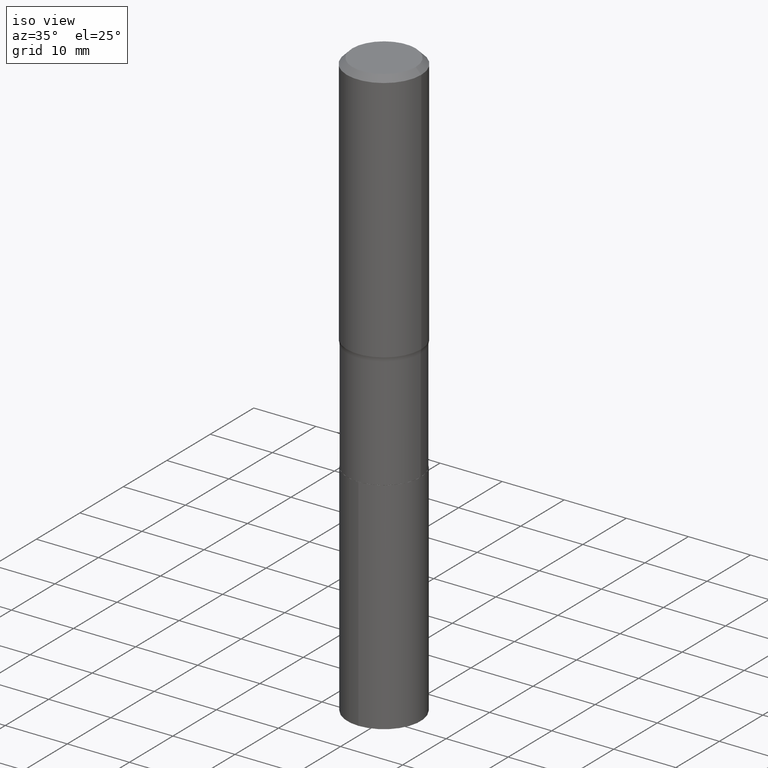
[diagram: clean part render]
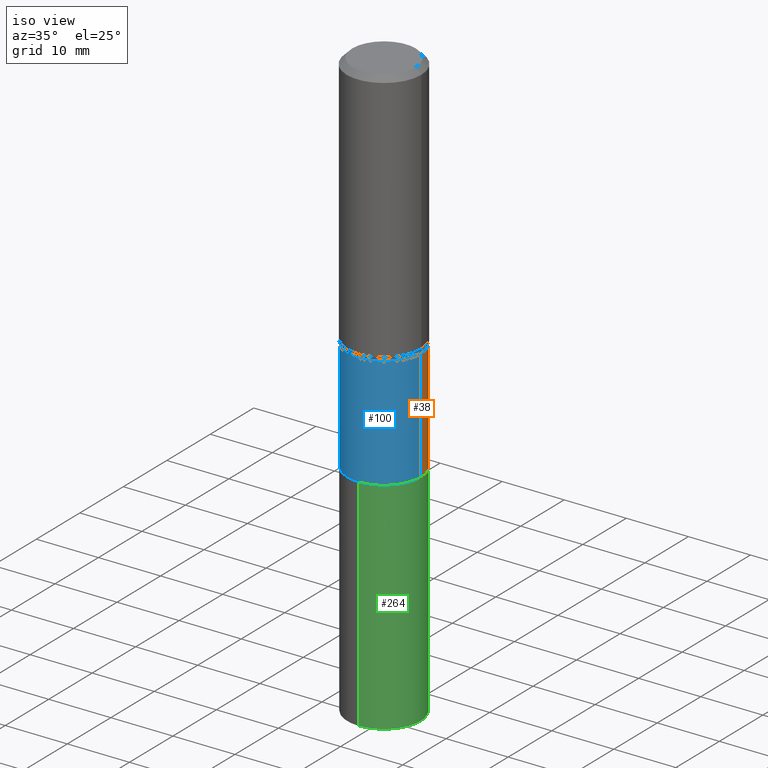
[diagram: same view with three faces highlighted in distinct colors, each labeled with its STEP entity id]
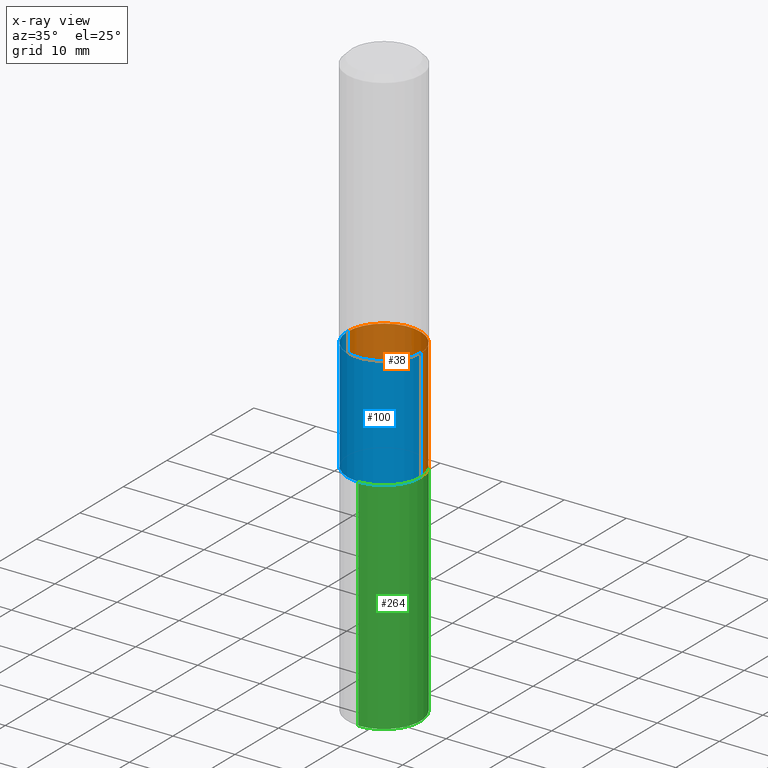
[diagram: x-ray of the same camera — body ghosted, the three highlighted faces saturated]
A machine part, iso view with three faces highlighted in distinct colors.
The next image is the same camera in x-ray (body ghosted, the three faces saturated) — at least one of them is partly hidden behind the body in this view.
Their STEP definitions:

[orange] entity #38 — the highlighted cylindrical surface (partial cylindrical patch) has radius 5.9004 mm, axis along (-0, 0, 1).
#5 = FACE_OUTER_BOUND ( 'NONE', #64, .T. ) ;
#12 = AXIS2_PLACEMENT_3D ( 'NONE', #29, #294, #181 ) ;
#18 = CARTESIAN_POINT ( 'NONE',  ( 0.2322999999999998955, -7.321985515687955047E-15, -1.632500000000000062 ) ) ;
#29 = CARTESIAN_POINT ( 'NONE',  ( 0.000000000000000000, 0.000000000000000000, 0.000000000000000000 ) ) ;
#38 = ADVANCED_FACE ( 'NONE', ( #5 ), #358, .T. ) ;
#47 = AXIS2_PLACEMENT_3D ( 'NONE', #85, #151, #115 ) ;
#49 = EDGE_CURVE ( 'NONE', #384, #308, #435, .T. ) ;
#58 = CARTESIAN_POINT ( 'NONE',  ( 0.2323000000000000065, -9.798144081195515105E-15, -2.341700000000000337 ) ) ;
#63 = EDGE_CURVE ( 'NONE', #168, #126, #276, .T. ) ;
#64 = EDGE_LOOP ( 'NONE', ( #412, #421, #258, #336 ) ) ;
#66 = DIRECTION ( 'NONE',  ( -2.445468806185136877E-29, 3.491481338843145188E-15, 1.000000000000000000 ) ) ;
#85 = CARTESIAN_POINT ( 'NONE',  ( 3.992227826097236189E-29, -5.699843285661435555E-15, -1.632500000000000062 ) ) ;
#115 = DIRECTION ( 'NONE',  ( 1.000000000000000000, -6.982962677686265133E-15, 0.000000000000000000 ) ) ;
#126 = VERTEX_POINT ( 'NONE', #18 ) ;
#151 = DIRECTION ( 'NONE',  ( -2.445468806185136597E-29, 3.491481338843145583E-15, 1.000000000000000000 ) ) ;
#168 = VERTEX_POINT ( 'NONE', #58 ) ;
#177 = CARTESIAN_POINT ( 'NONE',  ( 0.2322999999999999510, -1.622142230026519492E-15, 1.132735865017395539E-29 ) ) ;
#181 = DIRECTION ( 'NONE',  ( 1.000000000000000000, -6.982962677686266711E-15, 4.876176775795935232E-29 ) ) ;
#224 = EDGE_CURVE ( 'NONE', #168, #384, #366, .T. ) ;
#258 = ORIENTED_EDGE ( 'NONE', *, *, #367, .F. ) ;
#262 = AXIS2_PLACEMENT_3D ( 'NONE', #309, #273, #341 ) ;
#273 = DIRECTION ( 'NONE',  ( -2.445468806185136597E-29, 3.491481338843145583E-15, 1.000000000000000000 ) ) ;
#276 = LINE ( 'NONE', #177, #300 ) ;
#294 = DIRECTION ( 'NONE',  ( -2.445468806185136597E-29, 3.491481338843145583E-15, 1.000000000000000000 ) ) ;
#295 = VECTOR ( 'NONE', #432, 39.37007874015748143 ) ;
#300 = VECTOR ( 'NONE', #66, 39.37007874015748143 ) ;
#308 = VERTEX_POINT ( 'NONE', #461 ) ;
#309 = CARTESIAN_POINT ( 'NONE',  ( 5.726554303443734982E-29, -8.176001851168995614E-15, -2.341700000000000337 ) ) ;
#319 = CARTESIAN_POINT ( 'NONE',  ( -0.2322999999999999510, 1.650590775170712383E-15, -1.142668621466214426E-29 ) ) ;
#335 = CARTESIAN_POINT ( 'NONE',  ( -0.2323000000000000065, -5.287331793244503201E-15, -2.341700000000000337 ) ) ;
#336 = ORIENTED_EDGE ( 'NONE', *, *, #63, .F. ) ;
#341 = DIRECTION ( 'NONE',  ( 1.000000000000000000, -6.982962677686265922E-15, 0.000000000000000000 ) ) ;
#358 = CYLINDRICAL_SURFACE ( 'NONE', #12, 0.2322999999999999510 ) ;
#366 = CIRCLE ( 'NONE', #262, 0.2323000000000000065 ) ;
#367 = EDGE_CURVE ( 'NONE', #126, #308, #389, .T. ) ;
#384 = VERTEX_POINT ( 'NONE', #335 ) ;
#389 = CIRCLE ( 'NONE', #47, 0.2322999999999998955 ) ;
#412 = ORIENTED_EDGE ( 'NONE', *, *, #224, .T. ) ;
#421 = ORIENTED_EDGE ( 'NONE', *, *, #49, .T. ) ;
#432 = DIRECTION ( 'NONE',  ( -2.445468806185136877E-29, 3.491481338843145188E-15, 1.000000000000000000 ) ) ;
#435 = LINE ( 'NONE', #319, #295 ) ;
#461 = CARTESIAN_POINT ( 'NONE',  ( -0.2322999999999998955, -5.287331793244503201E-15, -1.632500000000000062 ) ) ;

[blue] entity #100 — the highlighted cylindrical surface (partial cylindrical patch) has radius 5.9004 mm, axis along (-0, 0, 1).
#18 = CARTESIAN_POINT ( 'NONE',  ( 0.2322999999999998955, -7.321985515687955047E-15, -1.632500000000000062 ) ) ;
#41 = AXIS2_PLACEMENT_3D ( 'NONE', #407, #350, #199 ) ;
#49 = EDGE_CURVE ( 'NONE', #384, #308, #435, .T. ) ;
#58 = CARTESIAN_POINT ( 'NONE',  ( 0.2323000000000000065, -9.798144081195515105E-15, -2.341700000000000337 ) ) ;
#63 = EDGE_CURVE ( 'NONE', #168, #126, #276, .T. ) ;
#66 = DIRECTION ( 'NONE',  ( -2.445468806185136877E-29, 3.491481338843145188E-15, 1.000000000000000000 ) ) ;
#68 = CIRCLE ( 'NONE', #161, 0.2322999999999998955 ) ;
#100 = ADVANCED_FACE ( 'NONE', ( #165 ), #129, .T. ) ;
#126 = VERTEX_POINT ( 'NONE', #18 ) ;
#129 = CYLINDRICAL_SURFACE ( 'NONE', #379, 0.2322999999999999510 ) ;
#135 = DIRECTION ( 'NONE',  ( 1.000000000000000000, -6.982962677686266711E-15, 4.876176775795935232E-29 ) ) ;
#144 = EDGE_LOOP ( 'NONE', ( #249, #394, #178, #283 ) ) ;
#161 = AXIS2_PLACEMENT_3D ( 'NONE', #170, #310, #247 ) ;
#165 = FACE_OUTER_BOUND ( 'NONE', #144, .T. ) ;
#168 = VERTEX_POINT ( 'NONE', #58 ) ;
#170 = CARTESIAN_POINT ( 'NONE',  ( 3.992227826097236189E-29, -5.699843285661435555E-15, -1.632500000000000062 ) ) ;
#177 = CARTESIAN_POINT ( 'NONE',  ( 0.2322999999999999510, -1.622142230026519492E-15, 1.132735865017395539E-29 ) ) ;
#178 = ORIENTED_EDGE ( 'NONE', *, *, #63, .T. ) ;
#196 = EDGE_CURVE ( 'NONE', #308, #126, #68, .T. ) ;
#199 = DIRECTION ( 'NONE',  ( 1.000000000000000000, -6.982962677686265922E-15, 0.000000000000000000 ) ) ;
#216 = CIRCLE ( 'NONE', #41, 0.2323000000000000065 ) ;
#247 = DIRECTION ( 'NONE',  ( 1.000000000000000000, -6.982962677686265133E-15, 0.000000000000000000 ) ) ;
#249 = ORIENTED_EDGE ( 'NONE', *, *, #49, .F. ) ;
#276 = LINE ( 'NONE', #177, #300 ) ;
#283 = ORIENTED_EDGE ( 'NONE', *, *, #196, .F. ) ;
#295 = VECTOR ( 'NONE', #432, 39.37007874015748143 ) ;
#300 = VECTOR ( 'NONE', #66, 39.37007874015748143 ) ;
#308 = VERTEX_POINT ( 'NONE', #461 ) ;
#310 = DIRECTION ( 'NONE',  ( -2.445468806185136597E-29, 3.491481338843145583E-15, 1.000000000000000000 ) ) ;
#319 = CARTESIAN_POINT ( 'NONE',  ( -0.2322999999999999510, 1.650590775170712383E-15, -1.142668621466214426E-29 ) ) ;
#335 = CARTESIAN_POINT ( 'NONE',  ( -0.2323000000000000065, -5.287331793244503201E-15, -2.341700000000000337 ) ) ;
#350 = DIRECTION ( 'NONE',  ( -2.445468806185136597E-29, 3.491481338843145583E-15, 1.000000000000000000 ) ) ;
#376 = CARTESIAN_POINT ( 'NONE',  ( 0.000000000000000000, 0.000000000000000000, 0.000000000000000000 ) ) ;
#379 = AXIS2_PLACEMENT_3D ( 'NONE', #376, #388, #135 ) ;
#384 = VERTEX_POINT ( 'NONE', #335 ) ;
#388 = DIRECTION ( 'NONE',  ( -2.445468806185136597E-29, 3.491481338843145583E-15, 1.000000000000000000 ) ) ;
#394 = ORIENTED_EDGE ( 'NONE', *, *, #446, .T. ) ;
#407 = CARTESIAN_POINT ( 'NONE',  ( 5.726554303443734982E-29, -8.176001851168995614E-15, -2.341700000000000337 ) ) ;
#432 = DIRECTION ( 'NONE',  ( -2.445468806185136877E-29, 3.491481338843145188E-15, 1.000000000000000000 ) ) ;
#435 = LINE ( 'NONE', #319, #295 ) ;
#446 = EDGE_CURVE ( 'NONE', #384, #168, #216, .T. ) ;
#461 = CARTESIAN_POINT ( 'NONE',  ( -0.2322999999999998955, -5.287331793244503201E-15, -1.632500000000000062 ) ) ;

[green] entity #264 — the highlighted cylindrical surface (partial cylindrical patch) has radius 5.9004 mm, axis along (-0, 0, 1).
#2 = VECTOR ( 'NONE', #244, 39.37007874015748143 ) ;
#8 = DIRECTION ( 'NONE',  ( -2.445460196475928027E-29, 3.491493668436766401E-15, 1.000000000000000000 ) ) ;
#14 = CARTESIAN_POINT ( 'NONE',  ( 5.727777037846827784E-29, -8.177747591838416328E-15, -2.342200000000000060 ) ) ;
#19 = EDGE_LOOP ( 'NONE', ( #351, #256, #451, #123 ) ) ;
#23 = VERTEX_POINT ( 'NONE', #140 ) ;
#27 = VERTEX_POINT ( 'NONE', #426 ) ;
#40 = CIRCLE ( 'NONE', #204, 0.2323000000000000065 ) ;
#62 = CARTESIAN_POINT ( 'NONE',  ( -1.622142230026462497E-15, -0.2323000000000081666, -2.342199999999999616 ) ) ;
#75 = AXIS2_PLACEMENT_3D ( 'NONE', #14, #417, #246 ) ;
#91 = LINE ( 'NONE', #225, #113 ) ;
#95 = CARTESIAN_POINT ( 'NONE',  ( 9.146530392520179106E-29, -1.305885574031301935E-14, -3.740200000000001079 ) ) ;
#106 = FACE_OUTER_BOUND ( 'NONE', #19, .T. ) ;
#113 = VECTOR ( 'NONE', #8, 39.37007874015748143 ) ;
#123 = ORIENTED_EDGE ( 'NONE', *, *, #302, .F. ) ;
#140 = CARTESIAN_POINT ( 'NONE',  ( 1.650590775170804286E-15, 0.2322999999999918463, -2.342200000000000948 ) ) ;
#145 = CARTESIAN_POINT ( 'NONE',  ( 5.727777037846827784E-29, -8.177747591838416328E-15, -2.342200000000000060 ) ) ;
#150 = EDGE_CURVE ( 'NONE', #275, #27, #232, .T. ) ;
#156 = DIRECTION ( 'NONE',  ( -2.445460196475928027E-29, 3.491493668436766401E-15, 1.000000000000000000 ) ) ;
#163 = LINE ( 'NONE', #415, #2 ) ;
#204 = AXIS2_PLACEMENT_3D ( 'NONE', #145, #156, #339 ) ;
#209 = VERTEX_POINT ( 'NONE', #62 ) ;
#221 = AXIS2_PLACEMENT_3D ( 'NONE', #95, #419, #449 ) ;
#225 = CARTESIAN_POINT ( 'NONE',  ( 1.650590775170769773E-15, 0.2322999999999918463, -2.342200000000000948 ) ) ;
#232 = CIRCLE ( 'NONE', #221, 0.2323000000000000065 ) ;
#244 = DIRECTION ( 'NONE',  ( -2.445460196475928027E-29, 3.491493668436766401E-15, 1.000000000000000000 ) ) ;
#246 = DIRECTION ( 'NONE',  ( -6.982962677686265922E-15, -1.000000000000000000, 3.527999991817817286E-15 ) ) ;
#256 = ORIENTED_EDGE ( 'NONE', *, *, #318, .T. ) ;
#264 = ADVANCED_FACE ( 'NONE', ( #106 ), #456, .T. ) ;
#275 = VERTEX_POINT ( 'NONE', #362 ) ;
#296 = EDGE_CURVE ( 'NONE', #209, #23, #40, .T. ) ;
#302 = EDGE_CURVE ( 'NONE', #275, #209, #163, .T. ) ;
#318 = EDGE_CURVE ( 'NONE', #27, #23, #91, .T. ) ;
#339 = DIRECTION ( 'NONE',  ( -6.982962677686265922E-15, -1.000000000000000000, 3.527999991817817286E-15 ) ) ;
#351 = ORIENTED_EDGE ( 'NONE', *, *, #150, .T. ) ;
#362 = CARTESIAN_POINT ( 'NONE',  ( -1.622142230026428181E-15, -0.2323000000000130516, -3.740200000000000635 ) ) ;
#415 = CARTESIAN_POINT ( 'NONE',  ( -1.622142230026462497E-15, -0.2323000000000081666, -2.342199999999999616 ) ) ;
#417 = DIRECTION ( 'NONE',  ( -2.445460196475928027E-29, 3.491493668436766401E-15, 1.000000000000000000 ) ) ;
#419 = DIRECTION ( 'NONE',  ( -2.445460196475928027E-29, 3.491493668436766401E-15, 1.000000000000000000 ) ) ;
#426 = CARTESIAN_POINT ( 'NONE',  ( 1.650590775170786931E-15, 0.2322999999999869614, -3.740200000000001967 ) ) ;
#449 = DIRECTION ( 'NONE',  ( -6.982962677686265922E-15, -1.000000000000000000, 2.351999994545211393E-15 ) ) ;
#451 = ORIENTED_EDGE ( 'NONE', *, *, #296, .F. ) ;
#456 = CYLINDRICAL_SURFACE ( 'NONE', #75, 0.2323000000000000065 ) ;